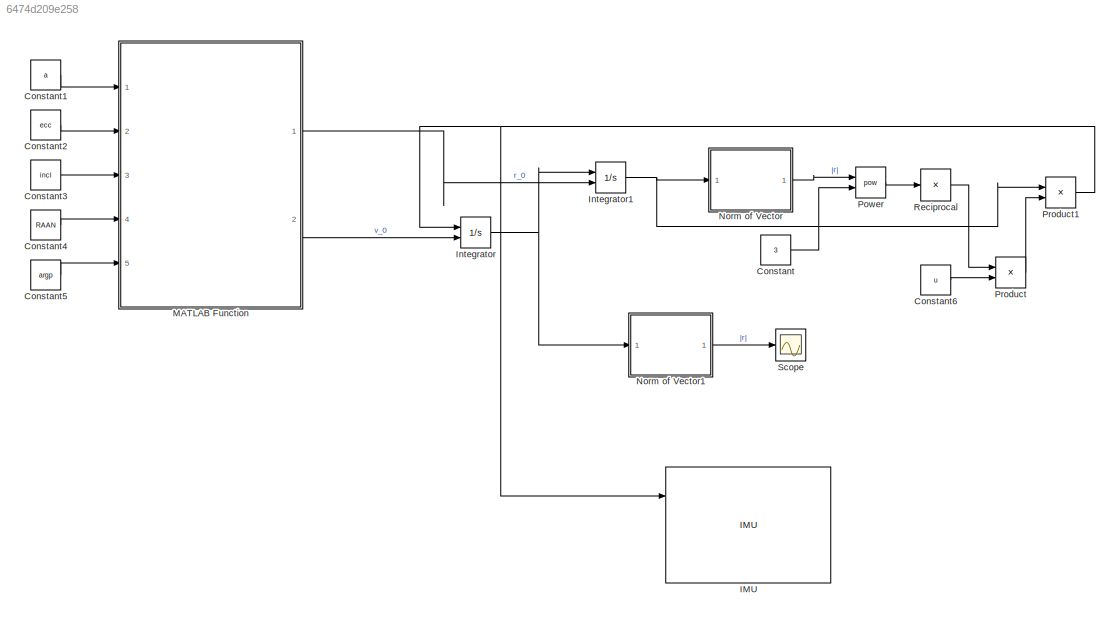
MODEL slx_6474d209e258
KIND model
CONFIG AbsTol = auto
CONFIG EnableMultiTasking = off
CONFIG FixedStep = auto
CONFIG MaxStep = auto
CONFIG MinStep = auto
CONFIG RelTol = 1e-3
CONFIG SampleTimeConstraint = Unconstrained
CONFIG SolverName = VariableStepAuto
CONFIG StartTime = 0.0
CONFIG StopTime = 10.0
BLOCK [Constant] Constant
  Value = 3
BLOCK [Constant] Constant1
  Value = a
BLOCK [Constant] Constant2
  Value = ecc
BLOCK [Constant] Constant3
  Value = incl
BLOCK [Constant] Constant4
  Value = RAAN
BLOCK [Constant] Constant5
  Value = argp
BLOCK [Constant] Constant6
  Value = u
BLOCK [Reference] IMU  REF=mspsensorlib/IMU
  Ports = [3, 3]
  SourceBlock = mspsensorlib/IMU
  SourceProductBaseCode = TF,NV
  SourceType = fusion.simulink.imuSensor
BLOCK [Integrator] Integrator
  InitialConditionSource = external
  Ports = [2, 1]
BLOCK [Integrator] Integrator1
  InitialConditionSource = external
  Ports = [2, 1]
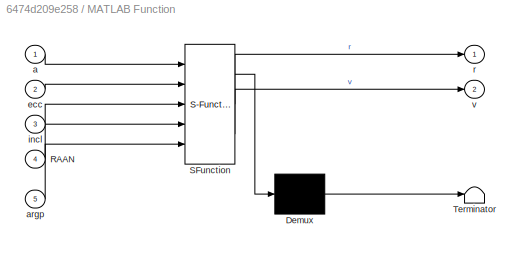
BLOCK [SubSystem] MATLAB Function
  ErrorFcn = Stateflow.Translate.translate
  PermitHierarchicalResolution = ExplicitOnly
  Ports = [5, 2]
  RequestExecContextInheritance = off
  SFBlockType = MATLAB Function
  TreatAsAtomicUnit = on
BLOCK [Demux] MATLAB Function/ Demux 
  Outputs = 1
  Ports = [1, 1]
BLOCK [S-Function] MATLAB Function/ SFunction 
  EnableBusSupport = on
  FunctionName = sf_sfun
  PortCounts = [5 3]
  Ports = [5, 3]
  SFcnIsStateOwnerBlock = off
  SFunctionDeploymentMode = off
  Tag = Stateflow S-Function 2
BLOCK [Terminator] MATLAB Function/ Terminator 
BLOCK [Inport] MATLAB Function/RAAN
  Port = 4
BLOCK [Inport] MATLAB Function/a
BLOCK [Inport] MATLAB Function/argp
  Port = 5
BLOCK [Inport] MATLAB Function/ecc
  Port = 2
BLOCK [Inport] MATLAB Function/incl
  Port = 3
BLOCK [Outport] MATLAB Function/r
BLOCK [Outport] MATLAB Function/v
  Port = 2
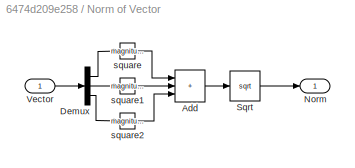
BLOCK [SubSystem] Norm of Vector
  Ports = [1, 1]
  RequestExecContextInheritance = off
BLOCK [Sum] Norm of Vector/Add
  IconShape = rectangular
  Inputs = +++
  Ports = [3, 1]
BLOCK [Demux] Norm of Vector/Demux
  Outputs = 3
  Ports = [1, 3]
BLOCK [Outport] Norm of Vector/Norm
BLOCK [Sqrt] Norm of Vector/Sqrt
BLOCK [Inport] Norm of Vector/Vector
BLOCK [Math] Norm of Vector/square
  Operator = magnitude^2
  Ports = [1, 1]
BLOCK [Math] Norm of Vector/square1
  Operator = magnitude^2
  Ports = [1, 1]
BLOCK [Math] Norm of Vector/square2
  Operator = magnitude^2
  Ports = [1, 1]
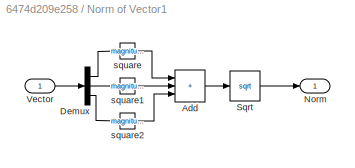
BLOCK [SubSystem] Norm of Vector1
  Ports = [1, 1]
  RequestExecContextInheritance = off
BLOCK [Sum] Norm of Vector1/Add
  IconShape = rectangular
  Inputs = +++
  Ports = [3, 1]
BLOCK [Demux] Norm of Vector1/Demux
  Outputs = 3
  Ports = [1, 3]
BLOCK [Outport] Norm of Vector1/Norm
BLOCK [Sqrt] Norm of Vector1/Sqrt
BLOCK [Inport] Norm of Vector1/Vector
BLOCK [Math] Norm of Vector1/square
  Operator = magnitude^2
  Ports = [1, 1]
BLOCK [Math] Norm of Vector1/square1
  Operator = magnitude^2
  Ports = [1, 1]
BLOCK [Math] Norm of Vector1/square2
  Operator = magnitude^2
  Ports = [1, 1]
BLOCK [Math] Power
  Operator = pow
  Ports = [2, 1]
BLOCK [Product] Product
  Ports = [2, 1]
BLOCK [Product] Product1
  Ports = [2, 1]
BLOCK [Product] Reciprocal
  Inputs = /
  Ports = [1, 1]
BLOCK [Scope] Scope
  Floating = off
  NumInputPorts = 1
  Ports = [1]
  ScopeSpecificationString = Simulink.scopes.TimeScopeBlockCfg('CurrentConfiguration', extmgr.ConfigurationSet(extmgr.Configuration('Core','General UI',true),extmgr.Configuration('Core','Source UI',true),extmgr.Configuration('Sources','WiredSimulink',true),extmgr.Configuration('Visuals','Time Domain',true,'SerializedDisplays',{struct('MinYLimReal','7.62649','MaxYLimReal','7.62765','YLabelReal','','MinYLimMag','7.62649','MaxYL...<+1420ch>
LINE Constant1:1 -> MATLAB Function:1
LINE Constant2:1 -> MATLAB Function:2
LINE Constant3:1 -> MATLAB Function:3
LINE Constant4:1 -> MATLAB Function:4
LINE Constant5:1 -> MATLAB Function:5
LINE Constant6:1 -> Product:2
LINE Constant:1 -> Power:2
NET Integrator1:1 -> Norm of Vector:1, Product1:1
NET Integrator:1 -> Integrator1:1, Norm of Vector1:1
LINE MATLAB Function:1 -> Integrator1:2
LINE MATLAB Function:2 -> Integrator:2
LINE Norm of Vector/Add:1 -> Norm of Vector/Sqrt:1
LINE Norm of Vector/Demux:1 -> Norm of Vector/square:1
LINE Norm of Vector/Demux:2 -> Norm of Vector/square1:1
LINE Norm of Vector/Demux:3 -> Norm of Vector/square2:1
LINE Norm of Vector/Sqrt:1 -> Norm of Vector/Norm:1
LINE Norm of Vector/Vector:1 -> Norm of Vector/Demux:1
LINE Norm of Vector/square1:1 -> Norm of Vector/Add:2
LINE Norm of Vector/square2:1 -> Norm of Vector/Add:3
LINE Norm of Vector/square:1 -> Norm of Vector/Add:1
LINE Norm of Vector1/Add:1 -> Norm of Vector1/Sqrt:1
LINE Norm of Vector1/Demux:1 -> Norm of Vector1/square:1
LINE Norm of Vector1/Demux:2 -> Norm of Vector1/square1:1
LINE Norm of Vector1/Demux:3 -> Norm of Vector1/square2:1
LINE Norm of Vector1/Sqrt:1 -> Norm of Vector1/Norm:1
LINE Norm of Vector1/Vector:1 -> Norm of Vector1/Demux:1
LINE Norm of Vector1/square1:1 -> Norm of Vector1/Add:2
LINE Norm of Vector1/square2:1 -> Norm of Vector1/Add:3
LINE Norm of Vector1/square:1 -> Norm of Vector1/Add:1
LINE Norm of Vector1:1 -> Scope:1
LINE Norm of Vector:1 -> Power:1
LINE Power:1 -> Reciprocal:1
NET Product1:1 -> IMU:1, Integrator:1
LINE Product:1 -> Product1:2
LINE Reciprocal:1 -> Product:1
note: NET lines group one-source signal fan-out (src -> all destinations, sorted); 1:1 wires keep LINE
CHART MATLAB Function states=1 transitions=1
  STATE_LABEL 'eML_blk_kernel()'
  STATE_LABEL 'SCRIPT:\nfunction [r, v] = init_conditions(a, ecc, incl, RAAN, argp)\n\n    G = 6.6743e-20;      % Universal gravitational constant\n    ME = 5.9724e24;      % Mass of Earth\n    u = G*ME;            % Gravitational parameter of Earth\n    \n    C3w = [cos(argp), sin(argp), 0; -1*sin(argp), cos(argp), 0; 0, 0, 1]; \n    C1i = [1, 0, 0; 0, cos(incl), sin(incl); 0, -1*sin(incl), cos(incl)];\n    C3O = [cos(R...<+1434ch>'
CHART  states=0 transitions=0
